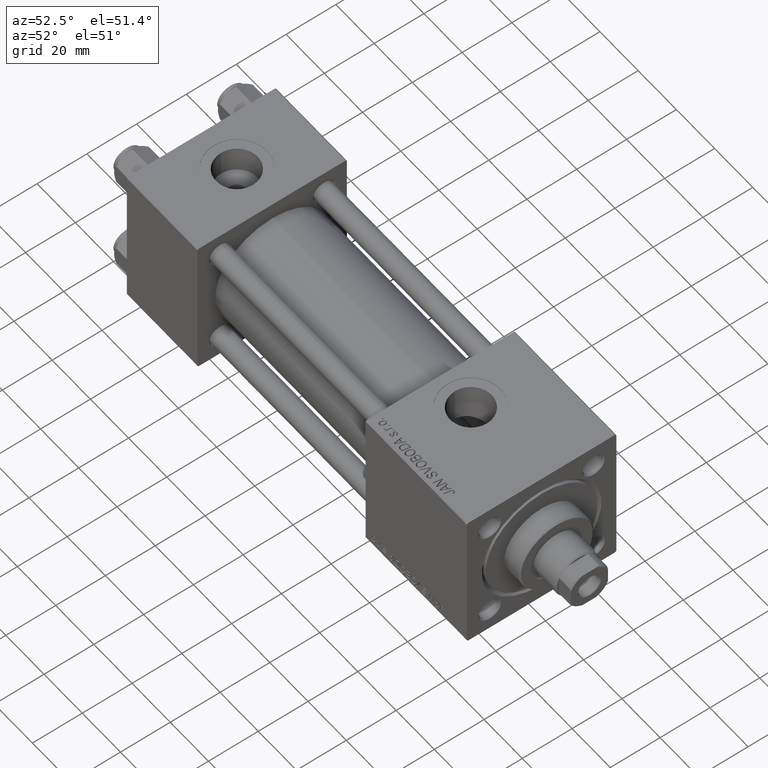
[diagram: clean part render]
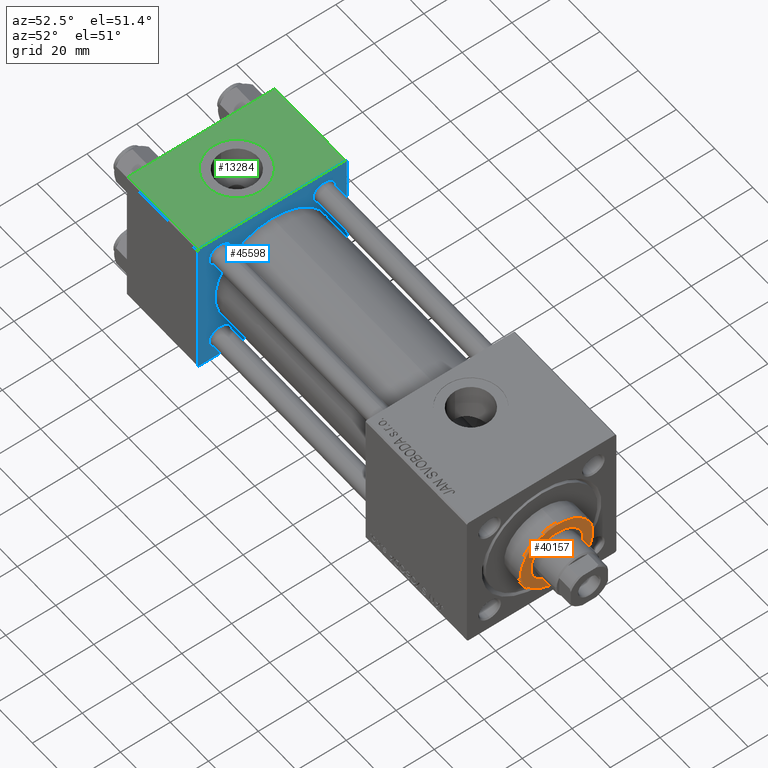
[diagram: same view with three faces highlighted in distinct colors, each labeled with its STEP entity id]
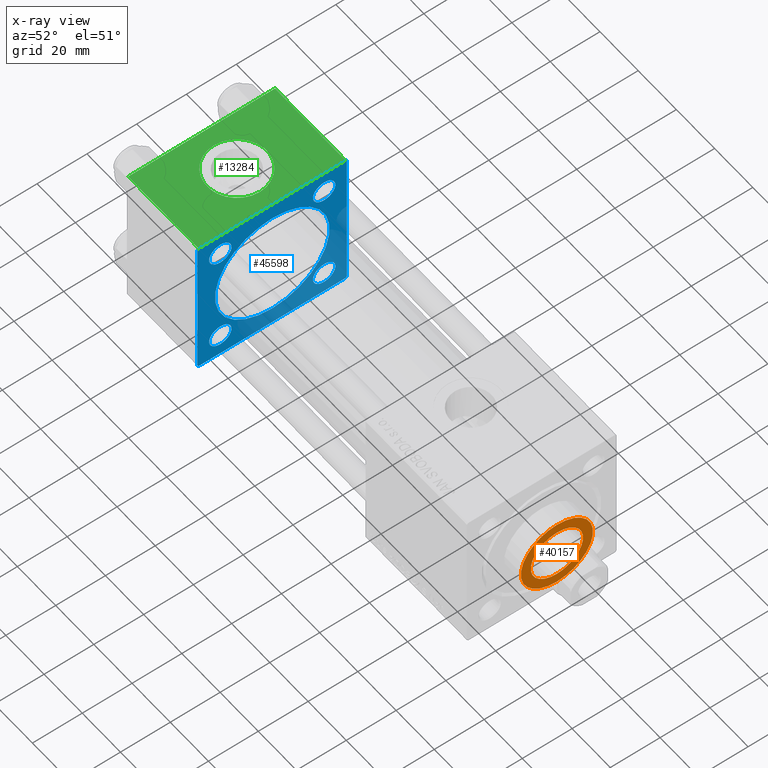
[diagram: x-ray of the same camera — body ghosted, the three highlighted faces saturated]
A machine part, auxiliary view with three faces highlighted in distinct colors.
The next image is the same camera in x-ray (body ghosted, the three faces saturated) — at least one of them is partly hidden behind the body in this view.
Their STEP definitions:

[orange] entity #40157 — the highlighted planar face has unit normal (1, 0, 0).
#450 = EDGE_CURVE ( 'NONE', #1075, #39251, #37859, .T. ) ;
#592 = AXIS2_PLACEMENT_3D ( 'NONE', #19128, #18879, #43034 ) ;
#1075 = VERTEX_POINT ( 'NONE', #38188 ) ;
#1706 = CARTESIAN_POINT ( 'NONE',  ( 14.50000000000001776, 1.806354028742346985E-15, 36.69999999999999574 ) ) ;
#2328 = PLANE ( 'NONE',  #592 ) ;
#3026 = EDGE_LOOP ( 'NONE', ( #35175, #4734 ) ) ;
#4734 = ORIENTED_EDGE ( 'NONE', *, *, #36283, .F. ) ;
#5710 = CARTESIAN_POINT ( 'NONE',  ( 0.000000000000000000, 0.000000000000000000, 36.69999999999999574 ) ) ;
#6239 = DIRECTION ( 'NONE',  ( 1.000000000000000000, 0.000000000000000000, 0.000000000000000000 ) ) ;
#7156 = CIRCLE ( 'NONE', #13833, 10.50000000000000000 ) ;
#7691 = ORIENTED_EDGE ( 'NONE', *, *, #45255, .T. ) ;
#8641 = CARTESIAN_POINT ( 'NONE',  ( -10.50000000000000000, 1.285879139104720831E-15, 36.69999999999999574 ) ) ;
#13833 = AXIS2_PLACEMENT_3D ( 'NONE', #35307, #30067, #46084 ) ;
#14594 = DIRECTION ( 'NONE',  ( 0.000000000000000000, 0.000000000000000000, 1.000000000000000000 ) ) ;
#14684 = ORIENTED_EDGE ( 'NONE', *, *, #37637, .T. ) ;
#17375 = CARTESIAN_POINT ( 'NONE',  ( 0.000000000000000000, 0.000000000000000000, 36.69999999999999574 ) ) ;
#18171 = AXIS2_PLACEMENT_3D ( 'NONE', #5710, #21996, #6239 ) ;
#18879 = DIRECTION ( 'NONE',  ( 0.000000000000000000, 0.000000000000000000, 1.000000000000000000 ) ) ;
#19128 = CARTESIAN_POINT ( 'NONE',  ( 0.000000000000000000, 0.000000000000000000, 36.69999999999999574 ) ) ;
#20606 = CIRCLE ( 'NONE', #49957, 14.50000000000001776 ) ;
#21996 = DIRECTION ( 'NONE',  ( 0.000000000000000000, 0.000000000000000000, 1.000000000000000000 ) ) ;
#24484 = DIRECTION ( 'NONE',  ( 0.000000000000000000, 0.000000000000000000, 1.000000000000000000 ) ) ;
#30067 = DIRECTION ( 'NONE',  ( 0.000000000000000000, 0.000000000000000000, 1.000000000000000000 ) ) ;
#30346 = CARTESIAN_POINT ( 'NONE',  ( 0.000000000000000000, 0.000000000000000000, 36.69999999999999574 ) ) ;
#30436 = FACE_OUTER_BOUND ( 'NONE', #41681, .T. ) ;
#30613 = DIRECTION ( 'NONE',  ( 1.000000000000000000, 0.000000000000000000, 0.000000000000000000 ) ) ;
#30737 = VERTEX_POINT ( 'NONE', #1706 ) ;
#30782 = CIRCLE ( 'NONE', #18171, 14.50000000000001776 ) ;
#32462 = VERTEX_POINT ( 'NONE', #48735 ) ;
#35175 = ORIENTED_EDGE ( 'NONE', *, *, #450, .F. ) ;
#35307 = CARTESIAN_POINT ( 'NONE',  ( 0.000000000000000000, 0.000000000000000000, 36.69999999999999574 ) ) ;
#36283 = EDGE_CURVE ( 'NONE', #39251, #1075, #7156, .T. ) ;
#37637 = EDGE_CURVE ( 'NONE', #30737, #32462, #20606, .T. ) ;
#37859 = CIRCLE ( 'NONE', #45393, 10.50000000000000000 ) ;
#38188 = CARTESIAN_POINT ( 'NONE',  ( 10.50000000000000000, 0.000000000000000000, 36.69999999999999574 ) ) ;
#38837 = FACE_BOUND ( 'NONE', #3026, .T. ) ;
#39251 = VERTEX_POINT ( 'NONE', #8641 ) ;
#40157 = ADVANCED_FACE ( 'NONE', ( #38837, #30436 ), #2328, .T. ) ;
#41681 = EDGE_LOOP ( 'NONE', ( #7691, #14684 ) ) ;
#43034 = DIRECTION ( 'NONE',  ( 1.000000000000000000, 0.000000000000000000, -0.000000000000000000 ) ) ;
#45255 = EDGE_CURVE ( 'NONE', #32462, #30737, #30782, .T. ) ;
#45393 = AXIS2_PLACEMENT_3D ( 'NONE', #17375, #24484, #48629 ) ;
#46084 = DIRECTION ( 'NONE',  ( 1.000000000000000000, 0.000000000000000000, 0.000000000000000000 ) ) ;
#48629 = DIRECTION ( 'NONE',  ( 1.000000000000000000, 0.000000000000000000, 0.000000000000000000 ) ) ;
#48735 = CARTESIAN_POINT ( 'NONE',  ( -14.50000000000001776, 0.000000000000000000, 36.69999999999999574 ) ) ;
#49957 = AXIS2_PLACEMENT_3D ( 'NONE', #30346, #14594, #30613 ) ;

[blue] entity #45598 — the highlighted planar face has unit normal (-1, 0, 0).
#423 = CARTESIAN_POINT ( 'NONE',  ( 37.00000000000000000, -20.84999999999999076, -20.85000000000000497 ) ) ;
#1169 = CARTESIAN_POINT ( 'NONE',  ( 37.00000000000000000, -20.84999999999999076, -25.35000000000000853 ) ) ;
#1258 = ORIENTED_EDGE ( 'NONE', *, *, #35591, .T. ) ;
#2879 = ORIENTED_EDGE ( 'NONE', *, *, #49748, .T. ) ;
#3259 = ORIENTED_EDGE ( 'NONE', *, *, #47871, .T. ) ;
#3732 = CARTESIAN_POINT ( 'NONE',  ( 37.00000000000000000, -20.84999999999999076, 20.85000000000000497 ) ) ;
#3741 = CARTESIAN_POINT ( 'NONE',  ( 37.00000000000000000, 20.84999999999999787, 16.34999999999999787 ) ) ;
#4418 = CIRCLE ( 'NONE', #6094, 4.500000000000003553 ) ;
#5812 = ORIENTED_EDGE ( 'NONE', *, *, #16263, .T. ) ;
#5906 = FACE_BOUND ( 'NONE', #39819, .T. ) ;
#6074 = ORIENTED_EDGE ( 'NONE', *, *, #47791, .T. ) ;
#6094 = AXIS2_PLACEMENT_3D ( 'NONE', #32564, #47554, #12346 ) ;
#6588 = EDGE_CURVE ( 'NONE', #29819, #51635, #50555, .T. ) ;
#6774 = EDGE_CURVE ( 'NONE', #24493, #50934, #4418, .T. ) ;
#6978 = CARTESIAN_POINT ( 'NONE',  ( 37.00000000000000000, 20.84999999999999787, -25.35000000000000497 ) ) ;
#8217 = AXIS2_PLACEMENT_3D ( 'NONE', #9298, #41346, #17435 ) ;
#8565 = CARTESIAN_POINT ( 'NONE',  ( 37.00000000000000000, -29.50000000000000000, -30.00000000000000711 ) ) ;
#8642 = DIRECTION ( 'NONE',  ( 0.000000000000000000, -1.000000000000000000, -1.156482317317871725E-16 ) ) ;
#8847 = CARTESIAN_POINT ( 'NONE',  ( 37.00000000000000000, 29.49999999999999289, 30.00000000000000000 ) ) ;
#8946 = DIRECTION ( 'NONE',  ( 0.000000000000000000, 0.000000000000000000, -1.000000000000000000 ) ) ;
#8989 = DIRECTION ( 'NONE',  ( 0.000000000000000000, -1.000000000000000000, -1.156482317317871725E-16 ) ) ;
#9119 = VECTOR ( 'NONE', #24234, 999.9999999999998863 ) ;
#9213 = ORIENTED_EDGE ( 'NONE', *, *, #31515, .T. ) ;
#9298 = CARTESIAN_POINT ( 'NONE',  ( 37.00000000000000000, -20.84999999999999076, -20.85000000000000497 ) ) ;
#9553 = CARTESIAN_POINT ( 'NONE',  ( 37.00000000000000000, 20.84999999999999787, 25.35000000000000497 ) ) ;
#10122 = PLANE ( 'NONE',  #10675 ) ;
#10224 = CARTESIAN_POINT ( 'NONE',  ( 37.00000000000000000, -30.00000000000000000, 29.49999999999999289 ) ) ;
#10295 = DIRECTION ( 'NONE',  ( 1.000000000000000000, -0.000000000000000000, 0.000000000000000000 ) ) ;
#10388 = DIRECTION ( 'NONE',  ( -0.000000000000000000, 0.000000000000000000, 1.000000000000000000 ) ) ;
#10675 = AXIS2_PLACEMENT_3D ( 'NONE', #45330, #21933, #10388 ) ;
#10970 = VECTOR ( 'NONE', #8989, 1000.000000000000000 ) ;
#11170 = EDGE_CURVE ( 'NONE', #19787, #47279, #38033, .T. ) ;
#11865 = DIRECTION ( 'NONE',  ( -1.000000000000000000, 0.000000000000000000, -0.000000000000000000 ) ) ;
#11930 = EDGE_LOOP ( 'NONE', ( #49244, #38657 ) ) ;
#12270 = DIRECTION ( 'NONE',  ( 0.000000000000000000, 0.7071067811865474617, -0.7071067811865474617 ) ) ;
#12346 = DIRECTION ( 'NONE',  ( 0.000000000000000000, 0.000000000000000000, 1.000000000000000000 ) ) ;
#12430 = AXIS2_PLACEMENT_3D ( 'NONE', #37146, #25590, #30048 ) ;
#12519 = CARTESIAN_POINT ( 'NONE',  ( 37.00000000000000000, -30.00000000000000000, -29.50000000000001776 ) ) ;
#12547 = CARTESIAN_POINT ( 'NONE',  ( 37.00000000000000711, 2.146024240737016609E-16, -23.00000000000000000 ) ) ;
#12945 = VERTEX_POINT ( 'NONE', #42457 ) ;
#13374 = EDGE_CURVE ( 'NONE', #42613, #40039, #42400, .T. ) ;
#13801 = AXIS2_PLACEMENT_3D ( 'NONE', #47369, #26905, #27407 ) ;
#14070 = FACE_BOUND ( 'NONE', #51734, .T. ) ;
#14333 = FACE_BOUND ( 'NONE', #31092, .T. ) ;
#14649 = EDGE_CURVE ( 'NONE', #50934, #24493, #16576, .T. ) ;
#15575 = EDGE_CURVE ( 'NONE', #19787, #26207, #40567, .T. ) ;
#15913 = CARTESIAN_POINT ( 'NONE',  ( 37.00000000000000000, -29.49999999999998579, 29.99999999999999289 ) ) ;
#16263 = EDGE_CURVE ( 'NONE', #51555, #32513, #19377, .T. ) ;
#16576 = CIRCLE ( 'NONE', #21595, 4.500000000000003553 ) ;
#16938 = CARTESIAN_POINT ( 'NONE',  ( 37.00000000000000000, 20.84999999999999787, 20.85000000000000142 ) ) ;
#17392 = EDGE_CURVE ( 'NONE', #24443, #26207, #28691, .T. ) ;
#17435 = DIRECTION ( 'NONE',  ( 0.000000000000000000, 0.000000000000000000, 1.000000000000000000 ) ) ;
#18061 = CARTESIAN_POINT ( 'NONE',  ( 37.00000000000000000, -20.84999999999999076, -16.35000000000000142 ) ) ;
#19377 = LINE ( 'NONE', #39603, #28384 ) ;
#19608 = ORIENTED_EDGE ( 'NONE', *, *, #27000, .T. ) ;
#19787 = VERTEX_POINT ( 'NONE', #51773 ) ;
#20231 = ORIENTED_EDGE ( 'NONE', *, *, #6588, .T. ) ;
#20316 = VECTOR ( 'NONE', #8946, 1000.000000000000000 ) ;
#20858 = CARTESIAN_POINT ( 'NONE',  ( 37.00000000000000000, 29.99999999999999289, 30.00000000000000000 ) ) ;
#21057 = CARTESIAN_POINT ( 'NONE',  ( 37.00000000000000000, 29.99999999999999289, -29.50000000000000000 ) ) ;
#21359 = EDGE_CURVE ( 'NONE', #24443, #32513, #48901, .T. ) ;
#21595 = AXIS2_PLACEMENT_3D ( 'NONE', #3732, #11865, #24471 ) ;
#21917 = ORIENTED_EDGE ( 'NONE', *, *, #17392, .T. ) ;
#21933 = DIRECTION ( 'NONE',  ( -1.000000000000000000, 0.000000000000000000, -0.000000000000000000 ) ) ;
#22461 = FACE_BOUND ( 'NONE', #35817, .T. ) ;
#23085 = ORIENTED_EDGE ( 'NONE', *, *, #24907, .T. ) ;
#23490 = CARTESIAN_POINT ( 'NONE',  ( 37.00000000000000000, -20.84999999999999076, 16.35000000000000142 ) ) ;
#23621 = LINE ( 'NONE', #24407, #35474 ) ;
#23630 = CARTESIAN_POINT ( 'NONE',  ( 37.00000000000000000, 29.49999999999997868, -30.00000000000000000 ) ) ;
#24081 = AXIS2_PLACEMENT_3D ( 'NONE', #16938, #32970, #48977 ) ;
#24234 = DIRECTION ( 'NONE',  ( -0.000000000000000000, 0.7071067811865574537, 0.7071067811865376918 ) ) ;
#24253 = VERTEX_POINT ( 'NONE', #3741 ) ;
#24407 = CARTESIAN_POINT ( 'NONE',  ( 37.00000000000000000, 29.99999999999999289, 30.00000000000000000 ) ) ;
#24443 = VERTEX_POINT ( 'NONE', #23630 ) ;
#24471 = DIRECTION ( 'NONE',  ( 0.000000000000000000, 0.000000000000000000, 1.000000000000000000 ) ) ;
#24493 = VERTEX_POINT ( 'NONE', #47288 ) ;
#24604 = VERTEX_POINT ( 'NONE', #18061 ) ;
#24892 = CARTESIAN_POINT ( 'NONE',  ( 37.00000000000000000, 20.84999999999999787, -20.85000000000000142 ) ) ;
#24907 = EDGE_CURVE ( 'NONE', #12945, #51555, #44937, .T. ) ;
#25363 = DIRECTION ( 'NONE',  ( -1.000000000000000000, 0.000000000000000000, -0.000000000000000000 ) ) ;
#25590 = DIRECTION ( 'NONE',  ( -1.000000000000000000, 0.000000000000000000, -0.000000000000000000 ) ) ;
#25683 = ORIENTED_EDGE ( 'NONE', *, *, #15575, .F. ) ;
#25938 = ORIENTED_EDGE ( 'NONE', *, *, #11170, .T. ) ;
#25973 = CARTESIAN_POINT ( 'NONE',  ( 37.00000000000000711, -2.602085213965210642E-15, 23.00000000000000000 ) ) ;
#26152 = FACE_BOUND ( 'NONE', #11930, .T. ) ;
#26207 = VERTEX_POINT ( 'NONE', #29631 ) ;
#26905 = DIRECTION ( 'NONE',  ( 1.000000000000000000, -0.000000000000000000, 0.000000000000000000 ) ) ;
#27000 = EDGE_CURVE ( 'NONE', #47279, #30589, #23621, .T. ) ;
#27407 = DIRECTION ( 'NONE',  ( 0.000000000000000000, 0.000000000000000000, 1.000000000000000000 ) ) ;
#27544 = CIRCLE ( 'NONE', #8217, 4.500000000000003553 ) ;
#27962 = CIRCLE ( 'NONE', #40536, 4.500000000000003553 ) ;
#28384 = VECTOR ( 'NONE', #12270, 1000.000000000000114 ) ;
#28650 = CARTESIAN_POINT ( 'NONE',  ( 37.00000000000000000, -30.00000000000000000, 29.99999999999999289 ) ) ;
#28691 = LINE ( 'NONE', #21057, #9119 ) ;
#29631 = CARTESIAN_POINT ( 'NONE',  ( 37.00000000000000000, 29.99999999999999289, -29.50000000000000000 ) ) ;
#29666 = DIRECTION ( 'NONE',  ( -0.000000000000000000, -0.7071067811865474617, -0.7071067811865474617 ) ) ;
#29819 = VERTEX_POINT ( 'NONE', #49757 ) ;
#30048 = DIRECTION ( 'NONE',  ( 0.000000000000000000, 0.000000000000000000, 1.000000000000000000 ) ) ;
#30589 = VERTEX_POINT ( 'NONE', #15913 ) ;
#31092 = EDGE_LOOP ( 'NONE', ( #3259, #9213 ) ) ;
#31515 = EDGE_CURVE ( 'NONE', #24604, #40733, #27962, .T. ) ;
#32269 = CIRCLE ( 'NONE', #13801, 23.00000000000000000 ) ;
#32513 = VERTEX_POINT ( 'NONE', #8565 ) ;
#32564 = CARTESIAN_POINT ( 'NONE',  ( 37.00000000000000000, -20.84999999999999076, 20.85000000000000497 ) ) ;
#32970 = DIRECTION ( 'NONE',  ( -1.000000000000000000, 0.000000000000000000, -0.000000000000000000 ) ) ;
#33152 = CARTESIAN_POINT ( 'NONE',  ( 37.00000000000000000, 29.99999999999999289, -30.00000000000000000 ) ) ;
#33237 = DIRECTION ( 'NONE',  ( 0.000000000000000000, 0.000000000000000000, 1.000000000000000000 ) ) ;
#33406 = CARTESIAN_POINT ( 'NONE',  ( 37.00000000000000000, 20.84999999999999787, -20.85000000000000142 ) ) ;
#33490 = ORIENTED_EDGE ( 'NONE', *, *, #34909, .F. ) ;
#33930 = CIRCLE ( 'NONE', #38136, 4.500000000000003553 ) ;
#34808 = VECTOR ( 'NONE', #29666, 1000.000000000000114 ) ;
#34909 = EDGE_CURVE ( 'NONE', #40039, #42613, #32269, .T. ) ;
#35380 = EDGE_CURVE ( 'NONE', #30589, #12945, #46208, .T. ) ;
#35474 = VECTOR ( 'NONE', #8642, 1000.000000000000000 ) ;
#35591 = EDGE_CURVE ( 'NONE', #51635, #29819, #33930, .T. ) ;
#35817 = EDGE_LOOP ( 'NONE', ( #1258, #20231 ) ) ;
#36452 = DIRECTION ( 'NONE',  ( 0.000000000000000000, 0.000000000000000000, 1.000000000000000000 ) ) ;
#37146 = CARTESIAN_POINT ( 'NONE',  ( 37.00000000000000000, 20.84999999999999787, 20.85000000000000142 ) ) ;
#37767 = CARTESIAN_POINT ( 'NONE',  ( 37.00000000000000000, 29.49999999999999289, 30.00000000000000000 ) ) ;
#38033 = LINE ( 'NONE', #37767, #39005 ) ;
#38136 = AXIS2_PLACEMENT_3D ( 'NONE', #24892, #40917, #36452 ) ;
#38657 = ORIENTED_EDGE ( 'NONE', *, *, #6774, .T. ) ;
#39005 = VECTOR ( 'NONE', #46442, 1000.000000000000114 ) ;
#39098 = ORIENTED_EDGE ( 'NONE', *, *, #13374, .F. ) ;
#39603 = CARTESIAN_POINT ( 'NONE',  ( 37.00000000000000000, -29.50000000000001066, -30.00000000000000711 ) ) ;
#39657 = AXIS2_PLACEMENT_3D ( 'NONE', #33406, #49415, #45496 ) ;
#39819 = EDGE_LOOP ( 'NONE', ( #33490, #39098 ) ) ;
#40039 = VERTEX_POINT ( 'NONE', #25973 ) ;
#40536 = AXIS2_PLACEMENT_3D ( 'NONE', #423, #25363, #33237 ) ;
#40567 = LINE ( 'NONE', #20858, #41773 ) ;
#40728 = ORIENTED_EDGE ( 'NONE', *, *, #21359, .F. ) ;
#40733 = VERTEX_POINT ( 'NONE', #1169 ) ;
#40917 = DIRECTION ( 'NONE',  ( -1.000000000000000000, 0.000000000000000000, -0.000000000000000000 ) ) ;
#41296 = DIRECTION ( 'NONE',  ( 0.000000000000000000, 0.000000000000000000, 1.000000000000000000 ) ) ;
#41346 = DIRECTION ( 'NONE',  ( -1.000000000000000000, 0.000000000000000000, -0.000000000000000000 ) ) ;
#41545 = CARTESIAN_POINT ( 'NONE',  ( 37.00000000000000711, -2.602085213965210642E-15, 0.000000000000000000 ) ) ;
#41773 = VECTOR ( 'NONE', #48687, 1000.000000000000000 ) ;
#42400 = CIRCLE ( 'NONE', #43224, 23.00000000000000000 ) ;
#42457 = CARTESIAN_POINT ( 'NONE',  ( 37.00000000000000000, -30.00000000000000000, 29.49999999999999289 ) ) ;
#42613 = VERTEX_POINT ( 'NONE', #12547 ) ;
#43224 = AXIS2_PLACEMENT_3D ( 'NONE', #41545, #10295, #41296 ) ;
#44937 = LINE ( 'NONE', #28650, #20316 ) ;
#45330 = CARTESIAN_POINT ( 'NONE',  ( 37.00000000000000000, 0.000000000000000000, 0.000000000000000000 ) ) ;
#45496 = DIRECTION ( 'NONE',  ( 0.000000000000000000, 0.000000000000000000, 1.000000000000000000 ) ) ;
#45598 = ADVANCED_FACE ( 'NONE', ( #14333, #22461, #26152, #14070, #5906, #46110 ), #10122, .F. ) ;
#46110 = FACE_OUTER_BOUND ( 'NONE', #49621, .T. ) ;
#46208 = LINE ( 'NONE', #10224, #34808 ) ;
#46442 = DIRECTION ( 'NONE',  ( 0.000000000000000000, -0.7071067811865474617, 0.7071067811865474617 ) ) ;
#47279 = VERTEX_POINT ( 'NONE', #8847 ) ;
#47288 = CARTESIAN_POINT ( 'NONE',  ( 37.00000000000000000, -20.84999999999999076, 25.35000000000000853 ) ) ;
#47369 = CARTESIAN_POINT ( 'NONE',  ( 37.00000000000000711, -2.602085213965210642E-15, 0.000000000000000000 ) ) ;
#47554 = DIRECTION ( 'NONE',  ( -1.000000000000000000, 0.000000000000000000, -0.000000000000000000 ) ) ;
#47791 = EDGE_CURVE ( 'NONE', #51783, #24253, #51809, .T. ) ;
#47871 = EDGE_CURVE ( 'NONE', #40733, #24604, #27544, .T. ) ;
#48687 = DIRECTION ( 'NONE',  ( 0.000000000000000000, 0.000000000000000000, -1.000000000000000000 ) ) ;
#48901 = LINE ( 'NONE', #33152, #10970 ) ;
#48977 = DIRECTION ( 'NONE',  ( 0.000000000000000000, 0.000000000000000000, 1.000000000000000000 ) ) ;
#49244 = ORIENTED_EDGE ( 'NONE', *, *, #14649, .T. ) ;
#49415 = DIRECTION ( 'NONE',  ( -1.000000000000000000, 0.000000000000000000, -0.000000000000000000 ) ) ;
#49621 = EDGE_LOOP ( 'NONE', ( #40728, #21917, #25683, #25938, #19608, #51147, #23085, #5812 ) ) ;
#49748 = EDGE_CURVE ( 'NONE', #24253, #51783, #51037, .T. ) ;
#49757 = CARTESIAN_POINT ( 'NONE',  ( 37.00000000000000000, 20.84999999999999787, -16.34999999999999787 ) ) ;
#50555 = CIRCLE ( 'NONE', #39657, 4.500000000000003553 ) ;
#50934 = VERTEX_POINT ( 'NONE', #23490 ) ;
#51037 = CIRCLE ( 'NONE', #24081, 4.500000000000003553 ) ;
#51147 = ORIENTED_EDGE ( 'NONE', *, *, #35380, .T. ) ;
#51555 = VERTEX_POINT ( 'NONE', #12519 ) ;
#51635 = VERTEX_POINT ( 'NONE', #6978 ) ;
#51734 = EDGE_LOOP ( 'NONE', ( #2879, #6074 ) ) ;
#51773 = CARTESIAN_POINT ( 'NONE',  ( 37.00000000000000000, 29.99999999999999289, 29.50000000000000000 ) ) ;
#51783 = VERTEX_POINT ( 'NONE', #9553 ) ;
#51809 = CIRCLE ( 'NONE', #12430, 4.500000000000003553 ) ;

[green] entity #13284 — the highlighted planar face has unit normal (0, 0, -1).
#1037 = CARTESIAN_POINT ( 'NONE',  ( 6.499999999999997335, -1.999870792976790833E-15, 29.99999999999999645 ) ) ;
#2081 = EDGE_LOOP ( 'NONE', ( #13558, #31933, #32519, #12590 ) ) ;
#4765 = EDGE_CURVE ( 'NONE', #47279, #25529, #13211, .T. ) ;
#7473 = EDGE_LOOP ( 'NONE', ( #21735, #12763 ) ) ;
#8642 = DIRECTION ( 'NONE',  ( 0.000000000000000000, -1.000000000000000000, -1.156482317317871725E-16 ) ) ;
#8773 = LINE ( 'NONE', #24797, #44435 ) ;
#8847 = CARTESIAN_POINT ( 'NONE',  ( 37.00000000000000000, 29.49999999999999289, 30.00000000000000000 ) ) ;
#9527 = CARTESIAN_POINT ( 'NONE',  ( 0.000000000000000000, 29.49999999999999289, 30.00000000000000000 ) ) ;
#10580 = EDGE_CURVE ( 'NONE', #23478, #34547, #27223, .T. ) ;
#11735 = LINE ( 'NONE', #27503, #35302 ) ;
#12416 = DIRECTION ( 'NONE',  ( 0.000000000000000000, 1.156482317317871725E-16, -1.000000000000000000 ) ) ;
#12590 = ORIENTED_EDGE ( 'NONE', *, *, #4765, .T. ) ;
#12763 = ORIENTED_EDGE ( 'NONE', *, *, #16502, .F. ) ;
#13211 = LINE ( 'NONE', #9527, #47133 ) ;
#13284 = ADVANCED_FACE ( 'NONE', ( #21063, #28176 ), #48645, .F. ) ;
#13558 = ORIENTED_EDGE ( 'NONE', *, *, #21940, .T. ) ;
#15913 = CARTESIAN_POINT ( 'NONE',  ( 37.00000000000000000, -29.49999999999998579, 29.99999999999999289 ) ) ;
#16502 = EDGE_CURVE ( 'NONE', #34547, #23478, #46017, .T. ) ;
#17346 = CARTESIAN_POINT ( 'NONE',  ( 0.000000000000000000, -29.49999999999998579, 29.99999999999999289 ) ) ;
#18933 = AXIS2_PLACEMENT_3D ( 'NONE', #32894, #12416, #44460 ) ;
#19518 = EDGE_CURVE ( 'NONE', #50467, #30589, #8773, .T. ) ;
#21063 = FACE_BOUND ( 'NONE', #7473, .T. ) ;
#21735 = ORIENTED_EDGE ( 'NONE', *, *, #10580, .F. ) ;
#21940 = EDGE_CURVE ( 'NONE', #25529, #50467, #11735, .T. ) ;
#22349 = DIRECTION ( 'NONE',  ( 0.000000000000000000, 0.000000000000000000, 1.000000000000000000 ) ) ;
#23478 = VERTEX_POINT ( 'NONE', #47591 ) ;
#23621 = LINE ( 'NONE', #24407, #35474 ) ;
#24407 = CARTESIAN_POINT ( 'NONE',  ( 37.00000000000000000, 29.99999999999999289, 30.00000000000000000 ) ) ;
#24797 = CARTESIAN_POINT ( 'NONE',  ( 37.00000000000000000, -29.50000000000000000, 29.99999999999999289 ) ) ;
#25529 = VERTEX_POINT ( 'NONE', #44489 ) ;
#27000 = EDGE_CURVE ( 'NONE', #47279, #30589, #23621, .T. ) ;
#27042 = DIRECTION ( 'NONE',  ( 0.000000000000000000, 0.000000000000000000, 1.000000000000000000 ) ) ;
#27223 = CIRCLE ( 'NONE', #28903, 12.00000000000000000 ) ;
#27503 = CARTESIAN_POINT ( 'NONE',  ( 0.000000000000000000, 29.99999999999999289, 30.00000000000000000 ) ) ;
#28176 = FACE_OUTER_BOUND ( 'NONE', #2081, .T. ) ;
#28903 = AXIS2_PLACEMENT_3D ( 'NONE', #32250, #27042, #43057 ) ;
#30589 = VERTEX_POINT ( 'NONE', #15913 ) ;
#30927 = AXIS2_PLACEMENT_3D ( 'NONE', #33648, #22349, #37586 ) ;
#31933 = ORIENTED_EDGE ( 'NONE', *, *, #19518, .T. ) ;
#32250 = CARTESIAN_POINT ( 'NONE',  ( 18.50000000000000000, -3.469446951953614978E-15, 29.99999999999999645 ) ) ;
#32519 = ORIENTED_EDGE ( 'NONE', *, *, #27000, .F. ) ;
#32894 = CARTESIAN_POINT ( 'NONE',  ( 37.00000000000000000, 29.99999999999999289, 30.00000000000000000 ) ) ;
#33648 = CARTESIAN_POINT ( 'NONE',  ( 18.50000000000000000, -3.469446951953614978E-15, 29.99999999999999645 ) ) ;
#34547 = VERTEX_POINT ( 'NONE', #1037 ) ;
#35302 = VECTOR ( 'NONE', #35892, 1000.000000000000000 ) ;
#35474 = VECTOR ( 'NONE', #8642, 1000.000000000000000 ) ;
#35892 = DIRECTION ( 'NONE',  ( 0.000000000000000000, -1.000000000000000000, -1.156482317317871725E-16 ) ) ;
#37586 = DIRECTION ( 'NONE',  ( 1.000000000000000000, 0.000000000000000000, 0.000000000000000000 ) ) ;
#40824 = DIRECTION ( 'NONE',  ( 1.000000000000000000, 0.000000000000000000, 0.000000000000000000 ) ) ;
#43057 = DIRECTION ( 'NONE',  ( 1.000000000000000000, 0.000000000000000000, 0.000000000000000000 ) ) ;
#44435 = VECTOR ( 'NONE', #40824, 1000.000000000000000 ) ;
#44460 = DIRECTION ( 'NONE',  ( 0.000000000000000000, 1.000000000000000000, 1.156482317317871725E-16 ) ) ;
#44489 = CARTESIAN_POINT ( 'NONE',  ( 0.000000000000000000, 29.49999999999999289, 30.00000000000000000 ) ) ;
#46017 = CIRCLE ( 'NONE', #30927, 12.00000000000000000 ) ;
#47133 = VECTOR ( 'NONE', #49947, 1000.000000000000000 ) ;
#47279 = VERTEX_POINT ( 'NONE', #8847 ) ;
#47591 = CARTESIAN_POINT ( 'NONE',  ( 30.50000000000000000, -3.469446951953614978E-15, 29.99999999999999645 ) ) ;
#48645 = PLANE ( 'NONE',  #18933 ) ;
#49947 = DIRECTION ( 'NONE',  ( -1.000000000000000000, 0.000000000000000000, 0.000000000000000000 ) ) ;
#50467 = VERTEX_POINT ( 'NONE', #17346 ) ;